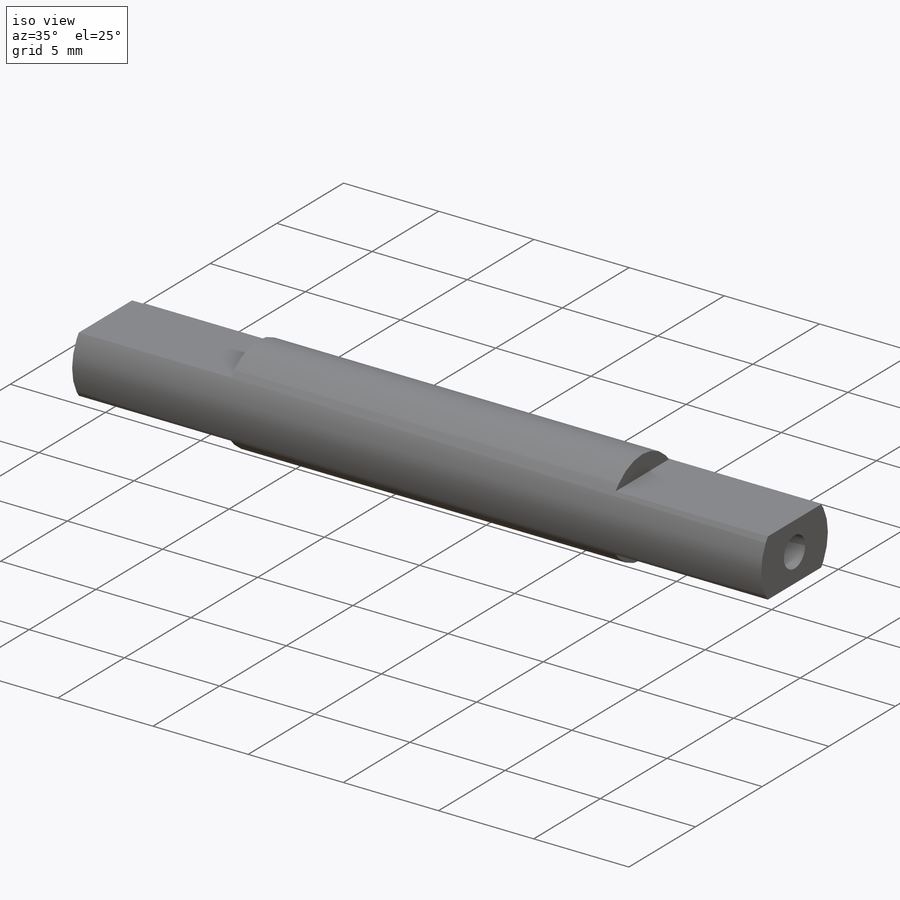
[diagram: iso view]
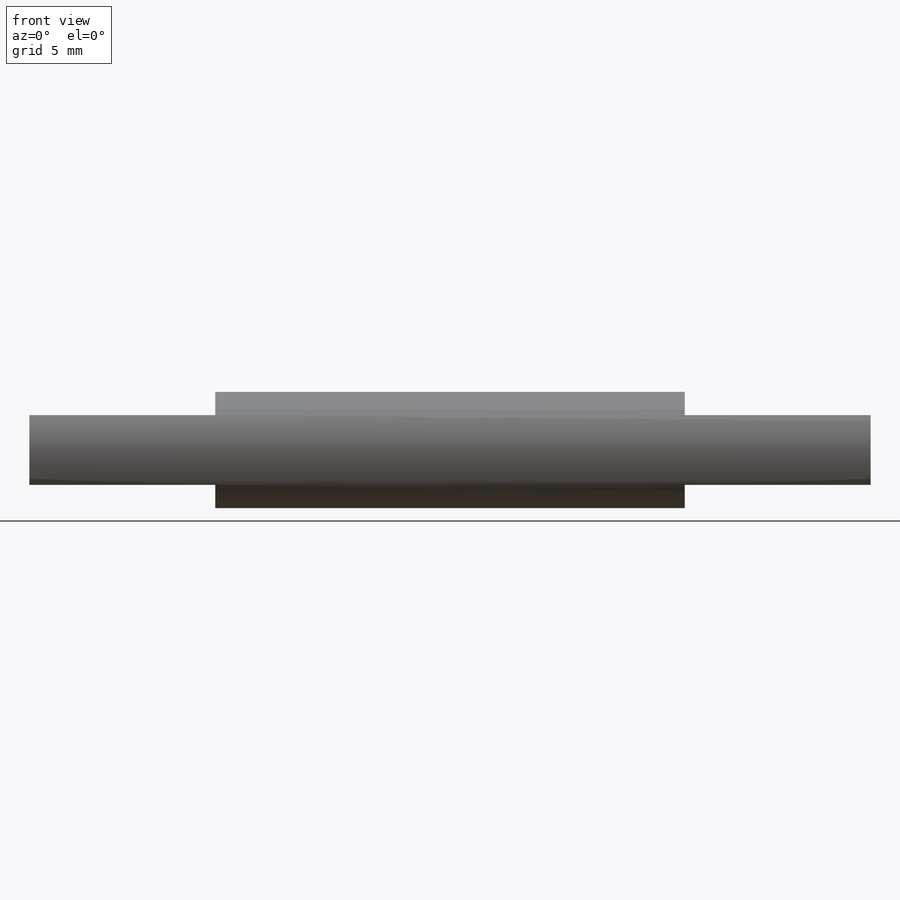
[diagram: front view]
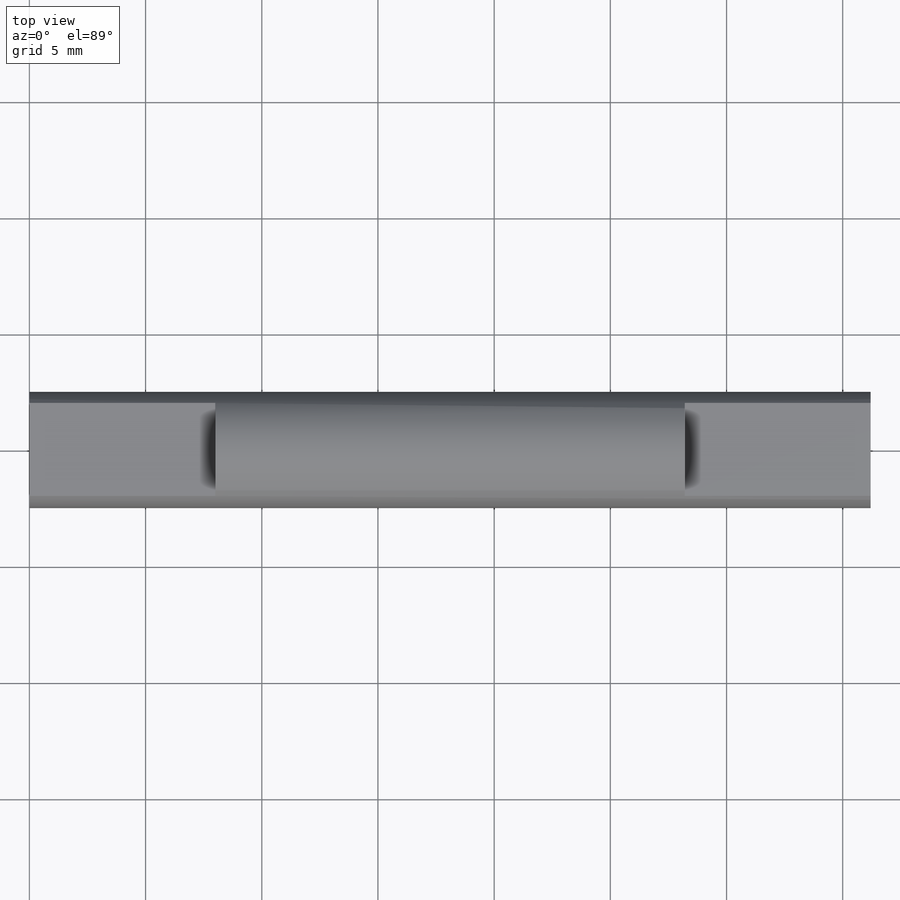
[diagram: top view]
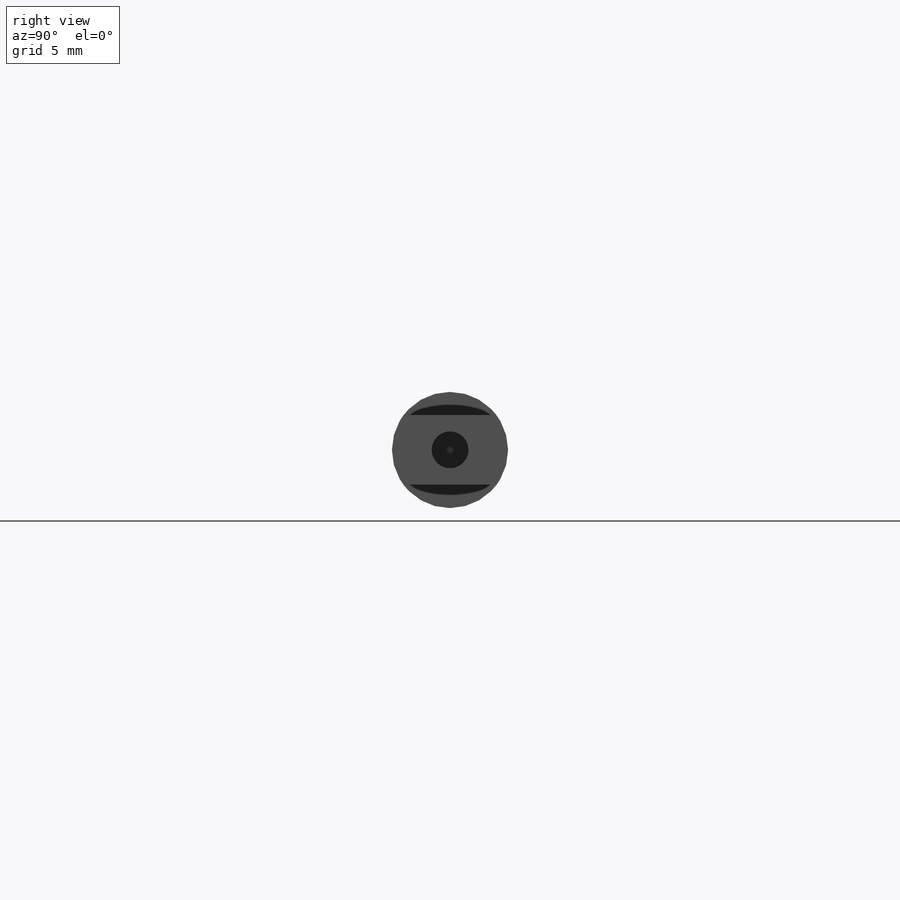
[diagram: right view]
SOLIDWORKS PART (.sldprt)
format: sldprt  version: not decoded by parser v0  size: 150,528 bytes
history: native  units: mm
features: sketch x5, cut_extrude x4, plane x3, material x1, extrude x1 (+8 scaffold rows collapsed)
feature tree (22):
  scaffold x8  (default folders/planes/origin — collapsed)
  material  "Material <sin especificar>"
  plane  "Alzado"
  plane  "Planta"
  plane  "Vista lateral"
  sketch  "Croquis1"  dims[D1=5.0mm]
  extrude  "Saliente-Extruir1"  Depth=36.2mm
  sketch  "Croquis2"  dims[D2=1.5875mm D1=3.0mm]
  cut_extrude  "Cortar-Extruir1"  Depth=8mm
  cut_extrude  "Cortar-Extruir2"  [1 undecoded]
  sketch  "Croquis2<3>"  dims[D1=5.0mm]
  sketch  "Croquis3"  dims[D1=0.0mm]
  cut_extrude  "Cortar-Extruir3"  Depth=8mm
  sketch  "Croquis4"  dims[D1=~0.906264mm]
  cut_extrude  "Cortar-Extruir4"  Depth=5mm
decode coverage: 9 of 10 modeling features carry decoded parameters
note: ~ marks probable driven/reference dimensions
note: 1 parameter value undecoded
note: suppression state not decoded; provenance and decode notes live in map.json
